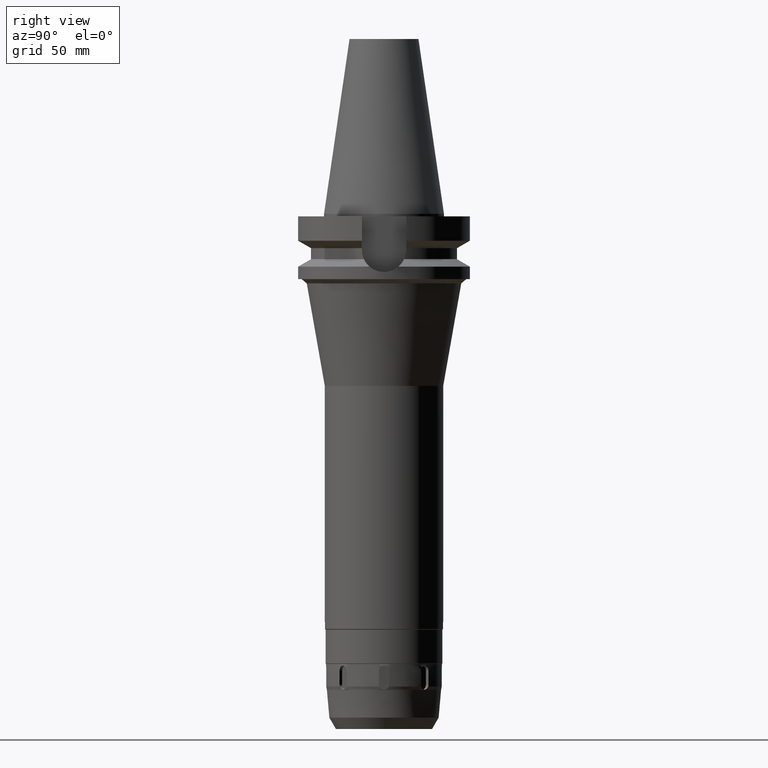
[diagram: clean part render]
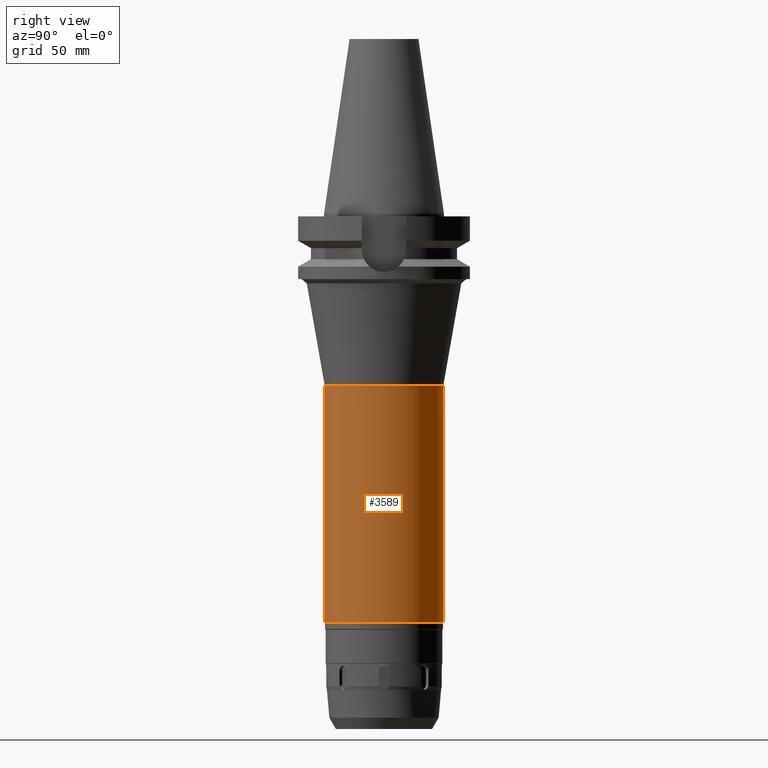
[diagram: same view with one face highlighted and labeled with its STEP entity id]
A machine part, right view. The second image highlights one B-rep face of the part: STEP entity #3589.
In plain terms, the highlighted cylindrical surface (partial cylindrical patch) has radius 34.5 mm, axis along (0, 0, -1).
Its self-contained STEP definition (entity closure, byte-faithful):
#1274=CARTESIAN_POINT('',(0.E0,2.717368782628E-14,-2.378E2));
#1275=DIRECTION('',(0.E0,0.E0,1.E0));
#1276=DIRECTION('',(0.E0,-1.E0,0.E0));
#1277=AXIS2_PLACEMENT_3D('',#1274,#1275,#1276);
#1306=DIRECTION('',(0.E0,0.E0,-1.E0));
#1307=VECTOR('',#1306,1.37625E2);
#1308=CARTESIAN_POINT('',(0.E0,3.45E1,-1.00175E2));
#1309=LINE('',#1308,#1307);
#1313=DIRECTION('',(0.E0,0.E0,-1.E0));
#1314=VECTOR('',#1313,1.37625E2);
#1315=CARTESIAN_POINT('',(0.E0,-3.45E1,-1.00175E2));
#1316=LINE('',#1315,#1314);
#1342=CARTESIAN_POINT('',(0.E0,0.E0,-1.00175E2));
#1343=DIRECTION('',(0.E0,0.E0,-1.E0));
#1344=DIRECTION('',(0.E0,1.E0,0.E0));
#1345=AXIS2_PLACEMENT_3D('',#1342,#1343,#1344);
#2629=CARTESIAN_POINT('',(0.E0,-3.45E1,-2.378E2));
#2630=CARTESIAN_POINT('',(0.E0,3.45E1,-2.378E2));
#2631=VERTEX_POINT('',#2629);
#2632=VERTEX_POINT('',#2630);
#2633=CARTESIAN_POINT('',(0.E0,3.45E1,-1.00175E2));
#2634=VERTEX_POINT('',#2633);
#2635=CARTESIAN_POINT('',(0.E0,-3.45E1,-1.00175E2));
#2636=VERTEX_POINT('',#2635);
#3575=CARTESIAN_POINT('',(0.E0,2.717368782628E-14,1.2189E2));
#3576=DIRECTION('',(0.E0,0.E0,-1.E0));
#3577=DIRECTION('',(0.E0,-1.E0,0.E0));
#3578=AXIS2_PLACEMENT_3D('',#3575,#3576,#3577);
#3579=CYLINDRICAL_SURFACE('',#3578,3.45E1);
#3581=ORIENTED_EDGE('',*,*,#3580,.T.);
#3582=ORIENTED_EDGE('',*,*,#3564,.F.);
#3584=ORIENTED_EDGE('',*,*,#3583,.F.);
#3586=ORIENTED_EDGE('',*,*,#3585,.F.);
#3587=EDGE_LOOP('',(#3581,#3582,#3584,#3586));
#3588=FACE_OUTER_BOUND('',#3587,.F.);
#1278=CIRCLE('',#1277,3.45E1);
#1346=CIRCLE('',#1345,3.45E1);
#3564=EDGE_CURVE('',#2631,#2632,#1278,.T.);
#3580=EDGE_CURVE('',#2634,#2632,#1309,.T.);
#3583=EDGE_CURVE('',#2636,#2631,#1316,.T.);
#3585=EDGE_CURVE('',#2634,#2636,#1346,.T.);
#3589=ADVANCED_FACE('',(#3588),#3579,.T.);